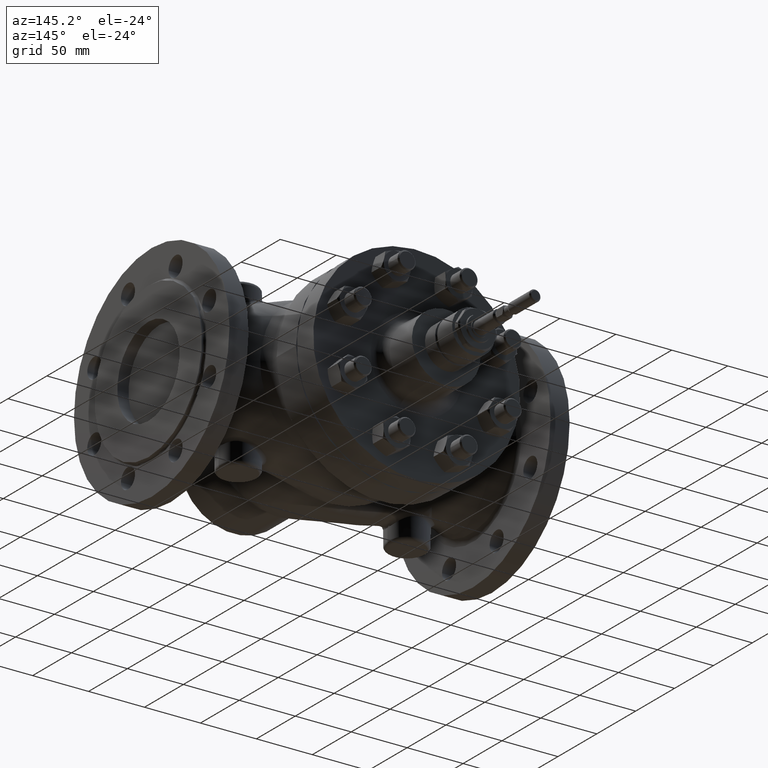
[diagram: clean part render]
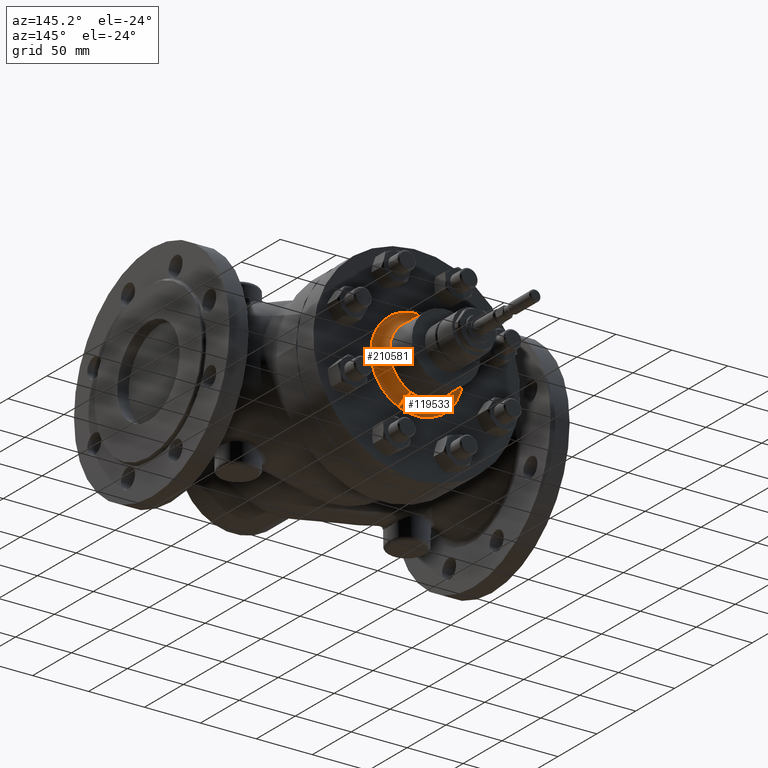
[diagram: same view with one multi-face feature highlighted, each face labeled with its STEP entity id]
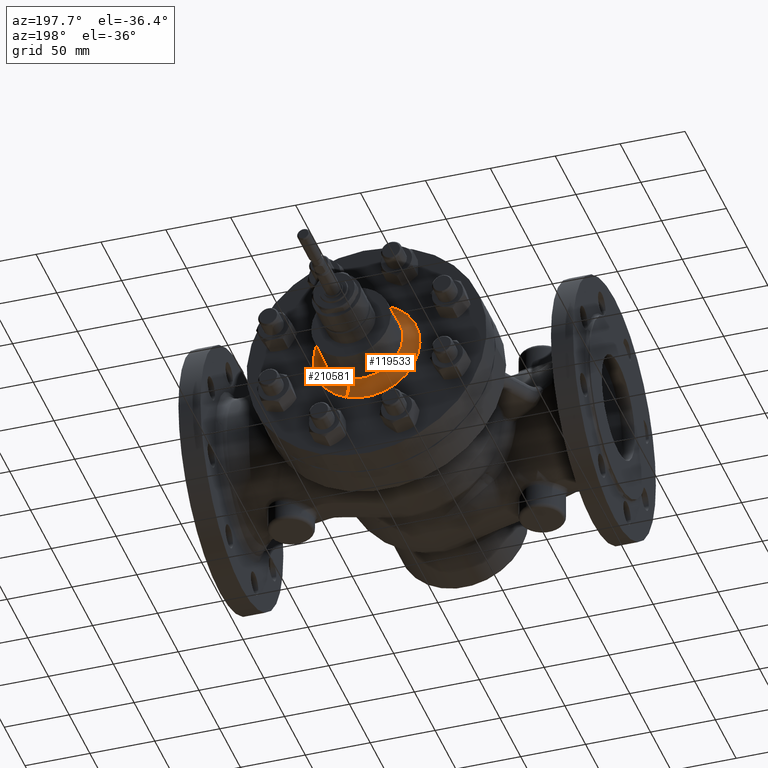
[diagram: same view with one multi-face feature highlighted, each face labeled with its STEP entity id]
A machine part, auxiliary view. The highlighted faces form ONE feature: a constant-radius fillet chain: 2 tangent blend faces with common blend radius 10 mm. The faces share edges in the B-rep.
A second angle (auxiliary view) of the same feature is appended — it is thin or edge-on in the first view.
Their STEP definitions:
[1] entity #119533 (Torus):
#4438 = AXIS2_PLACEMENT_3D ( 'NONE', #79181, #199904, #96526 ) ;
#5198 = EDGE_CURVE ( 'NONE', #83119, #5431, #196176, .T. ) ;
#5431 = VERTEX_POINT ( 'NONE', #209590 ) ;
#20695 = DIRECTION ( 'NONE',  ( 0.3826834323651069300, 4.686520405326503200E-017, -0.9238795325112797400 ) ) ;
#21625 = CARTESIAN_POINT ( 'NONE',  ( 15.73547016248143900, 131.9999999999999400, -37.98878547657786700 ) ) ;
#31762 = EDGE_CURVE ( 'NONE', #220460, #48035, #35686, .T. ) ;
#32455 = CARTESIAN_POINT ( 'NONE',  ( -11.90921868423354500, 131.8254759356271400, 28.75139726474219200 ) ) ;
#35333 = EDGE_CURVE ( 'NONE', #5431, #48035, #213682, .T. ) ;
#35686 = CIRCLE ( 'NONE', #206632, 10.00000000000000200 ) ;
#38966 = DIRECTION ( 'NONE',  ( -0.3826834323651068200, 0.0000000000000000000, 0.9238795325112797400 ) ) ;
#48035 = VERTEX_POINT ( 'NONE', #32455 ) ;
#48374 = DIRECTION ( 'NONE',  ( -1.224646799147352000E-016, 1.000000000000000000, -0.0000000000000000000 ) ) ;
#63240 = ORIENTED_EDGE ( 'NONE', *, *, #5198, .F. ) ;
#63747 = CARTESIAN_POINT ( 'NONE',  ( -15.73547016248143200, 131.9999999999999400, 37.98878547657786700 ) ) ;
#73708 = AXIS2_PLACEMENT_3D ( 'NONE', #210132, #106755, #20695 ) ;
#79181 = CARTESIAN_POINT ( 'NONE',  ( 2.326828918379971400E-015, 121.9999999999999700, -1.540743955509788700E-030 ) ) ;
#81115 = DIRECTION ( 'NONE',  ( 0.3826834323651068200, 0.0000000000000000000, -0.9238795325112797400 ) ) ;
#83119 = VERTEX_POINT ( 'NONE', #117943 ) ;
#94671 = ORIENTED_EDGE ( 'NONE', *, *, #31762, .T. ) ;
#96526 = DIRECTION ( 'NONE',  ( 0.3826834323651069300, 0.0000000000000000000, -0.9238795325112797400 ) ) ;
#104471 = AXIS2_PLACEMENT_3D ( 'NONE', #21625, #142352, #38966 ) ;
#106755 = DIRECTION ( 'NONE',  ( 1.224646799147352000E-016, -1.000000000000000000, 0.0000000000000000000 ) ) ;
#117943 = CARTESIAN_POINT ( 'NONE',  ( 15.73547016248143900, 121.9999999999999700, -37.98878547657786700 ) ) ;
#119533 = ADVANCED_FACE ( 'NONE', ( #222420 ), #135967, .F. ) ;
#124305 = AXIS2_PLACEMENT_3D ( 'NONE', #151782, #48374, #169145 ) ;
#135967 = TOROIDAL_SURFACE ( 'NONE', #73708, 41.11876509842917200, 10.00000000000000000 ) ;
#142352 = DIRECTION ( 'NONE',  ( -0.9238795325112796300, -1.131426112287690400E-016, -0.3826834323651069300 ) ) ;
#150883 = ORIENTED_EDGE ( 'NONE', *, *, #193398, .F. ) ;
#151782 = CARTESIAN_POINT ( 'NONE',  ( 1.123555152913457700E-015, 131.8254759356271400, -1.540743955509788700E-030 ) ) ;
#158967 = EDGE_LOOP ( 'NONE', ( #150883, #94671, #159533, #63240 ) ) ;
#159533 = ORIENTED_EDGE ( 'NONE', *, *, #35333, .F. ) ;
#165317 = CARTESIAN_POINT ( 'NONE',  ( -15.73547016248143200, 121.9999999999999600, 37.98878547657786700 ) ) ;
#169145 = DIRECTION ( 'NONE',  ( 0.3826834323651069300, 0.0000000000000000000, -0.9238795325112796300 ) ) ;
#184486 = DIRECTION ( 'NONE',  ( 0.9238795325112798600, 1.131426112287690600E-016, 0.3826834323651069300 ) ) ;
#193398 = EDGE_CURVE ( 'NONE', #220460, #83119, #205338, .T. ) ;
#196176 = CIRCLE ( 'NONE', #104471, 10.00000000000000200 ) ;
#199904 = DIRECTION ( 'NONE',  ( 1.224646799147352000E-016, -1.000000000000000000, 0.0000000000000000000 ) ) ;
#205338 = CIRCLE ( 'NONE', #4438, 41.11876509842917200 ) ;
#206632 = AXIS2_PLACEMENT_3D ( 'NONE', #63747, #184486, #81115 ) ;
#209590 = CARTESIAN_POINT ( 'NONE',  ( 11.90921868423354900, 131.8254759356271400, -28.75139726474219200 ) ) ;
#210132 = CARTESIAN_POINT ( 'NONE',  ( 1.102182119232619300E-015, 131.9999999999999400, -1.540743955509788700E-030 ) ) ;
#213682 = CIRCLE ( 'NONE', #124305, 31.12028814686526000 ) ;
#220460 = VERTEX_POINT ( 'NONE', #165317 ) ;
#222420 = FACE_OUTER_BOUND ( 'NONE', #158967, .T. ) ;
[2] entity #210581 (Torus):
#5155 = AXIS2_PLACEMENT_3D ( 'NONE', #69077, #189799, #207183 ) ;
#5198 = EDGE_CURVE ( 'NONE', #83119, #5431, #196176, .T. ) ;
#5271 = ORIENTED_EDGE ( 'NONE', *, *, #5198, .T. ) ;
#5431 = VERTEX_POINT ( 'NONE', #209590 ) ;
#21625 = CARTESIAN_POINT ( 'NONE',  ( 15.73547016248143900, 131.9999999999999400, -37.98878547657786700 ) ) ;
#24426 = AXIS2_PLACEMENT_3D ( 'NONE', #53725, #174475, #71116 ) ;
#31762 = EDGE_CURVE ( 'NONE', #220460, #48035, #35686, .T. ) ;
#31798 = ORIENTED_EDGE ( 'NONE', *, *, #215888, .F. ) ;
#32455 = CARTESIAN_POINT ( 'NONE',  ( -11.90921868423354500, 131.8254759356271400, 28.75139726474219200 ) ) ;
#35686 = CIRCLE ( 'NONE', #206632, 10.00000000000000200 ) ;
#38966 = DIRECTION ( 'NONE',  ( -0.3826834323651068200, 0.0000000000000000000, 0.9238795325112797400 ) ) ;
#48035 = VERTEX_POINT ( 'NONE', #32455 ) ;
#53725 = CARTESIAN_POINT ( 'NONE',  ( 1.123555152913457700E-015, 131.8254759356271400, -1.540743955509788700E-030 ) ) ;
#63747 = CARTESIAN_POINT ( 'NONE',  ( -15.73547016248143200, 131.9999999999999400, 37.98878547657786700 ) ) ;
#69077 = CARTESIAN_POINT ( 'NONE',  ( 1.102182119232619300E-015, 131.9999999999999400, -1.540743955509788700E-030 ) ) ;
#71116 = DIRECTION ( 'NONE',  ( 0.3826834323651069300, 0.0000000000000000000, -0.9238795325112796300 ) ) ;
#80001 = CARTESIAN_POINT ( 'NONE',  ( 2.326828918379971400E-015, 121.9999999999999700, -1.540743955509788700E-030 ) ) ;
#81115 = DIRECTION ( 'NONE',  ( 0.3826834323651068200, 0.0000000000000000000, -0.9238795325112797400 ) ) ;
#83119 = VERTEX_POINT ( 'NONE', #117943 ) ;
#97345 = DIRECTION ( 'NONE',  ( 0.3826834323651069300, 0.0000000000000000000, -0.9238795325112797400 ) ) ;
#101174 = ORIENTED_EDGE ( 'NONE', *, *, #116095, .F. ) ;
#103717 = AXIS2_PLACEMENT_3D ( 'NONE', #80001, #200730, #97345 ) ;
#104471 = AXIS2_PLACEMENT_3D ( 'NONE', #21625, #142352, #38966 ) ;
#116095 = EDGE_CURVE ( 'NONE', #48035, #5431, #155060, .T. ) ;
#117943 = CARTESIAN_POINT ( 'NONE',  ( 15.73547016248143900, 121.9999999999999700, -37.98878547657786700 ) ) ;
#142352 = DIRECTION ( 'NONE',  ( -0.9238795325112796300, -1.131426112287690400E-016, -0.3826834323651069300 ) ) ;
#149607 = CIRCLE ( 'NONE', #103717, 41.11876509842917200 ) ;
#155060 = CIRCLE ( 'NONE', #24426, 31.12028814686526000 ) ;
#157895 = EDGE_LOOP ( 'NONE', ( #214099, #31798, #5271, #101174 ) ) ;
#165317 = CARTESIAN_POINT ( 'NONE',  ( -15.73547016248143200, 121.9999999999999600, 37.98878547657786700 ) ) ;
#174475 = DIRECTION ( 'NONE',  ( -1.224646799147352000E-016, 1.000000000000000000, -0.0000000000000000000 ) ) ;
#176748 = FACE_OUTER_BOUND ( 'NONE', #157895, .T. ) ;
#184486 = DIRECTION ( 'NONE',  ( 0.9238795325112798600, 1.131426112287690600E-016, 0.3826834323651069300 ) ) ;
#189799 = DIRECTION ( 'NONE',  ( 1.224646799147352000E-016, -1.000000000000000000, 0.0000000000000000000 ) ) ;
#196176 = CIRCLE ( 'NONE', #104471, 10.00000000000000200 ) ;
#200730 = DIRECTION ( 'NONE',  ( 1.224646799147352000E-016, -1.000000000000000000, 0.0000000000000000000 ) ) ;
#206632 = AXIS2_PLACEMENT_3D ( 'NONE', #63747, #184486, #81115 ) ;
#207183 = DIRECTION ( 'NONE',  ( 0.3826834323651069300, 4.686520405326503200E-017, -0.9238795325112797400 ) ) ;
#209590 = CARTESIAN_POINT ( 'NONE',  ( 11.90921868423354900, 131.8254759356271400, -28.75139726474219200 ) ) ;
#210581 = ADVANCED_FACE ( 'NONE', ( #176748 ), #222687, .F. ) ;
#214099 = ORIENTED_EDGE ( 'NONE', *, *, #31762, .F. ) ;
#215888 = EDGE_CURVE ( 'NONE', #83119, #220460, #149607, .T. ) ;
#220460 = VERTEX_POINT ( 'NONE', #165317 ) ;
#222687 = TOROIDAL_SURFACE ( 'NONE', #5155, 41.11876509842917200, 10.00000000000000000 ) ;